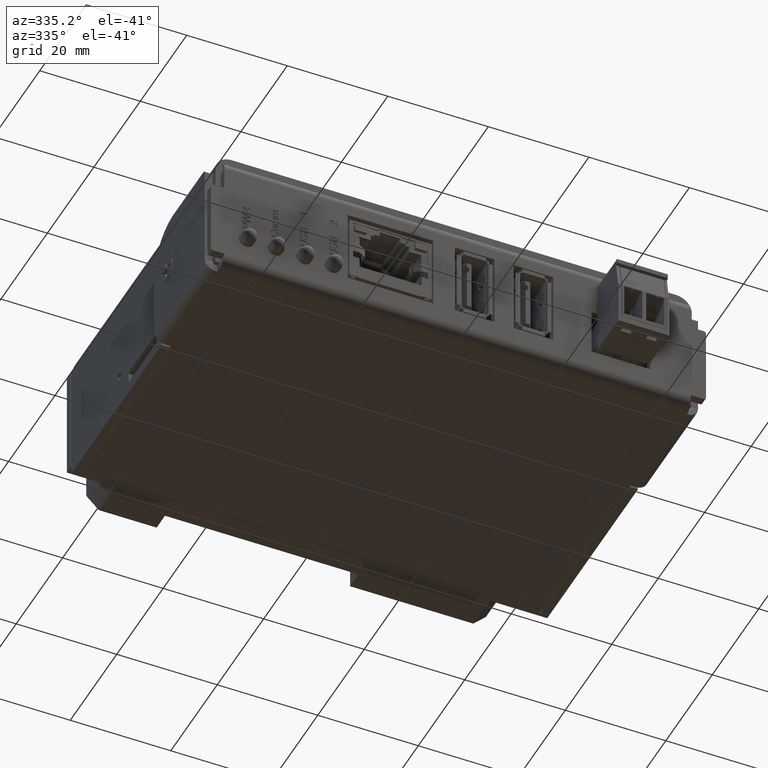
[diagram: clean part render]
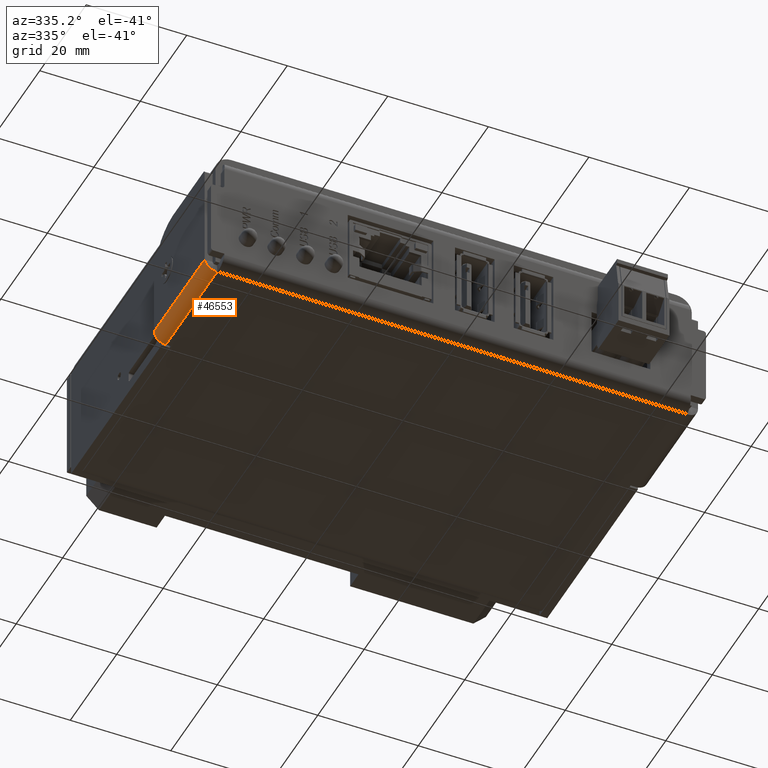
[diagram: same view with one face highlighted and labeled with its STEP entity id]
A machine part, auxiliary view. The second image highlights one B-rep face of the part: STEP entity #46553.
In plain terms, the highlighted cylindrical surface (edge-blend (fillet) strip) has radius 2.3368 mm, axis along (0, 1, 0).
Its self-contained STEP definition (entity closure, byte-faithful):
#2938=B_SPLINE_CURVE_WITH_KNOTS('',3,(#70556,#70557,#70558,#70559,#70560,
#70561,#70562),.UNSPECIFIED.,.F.,.F.,(4,3,4),(0.,0.673198425769242,1.5707963267949),
 .UNSPECIFIED.);
#4139=FACE_OUTER_BOUND('',#6736,.T.);
#6736=EDGE_LOOP('',(#34243,#34244,#34245,#34246));
#9682=LINE('',#70362,#14827);
#9724=LINE('',#70555,#14869);
#14827=VECTOR('',#52918,0.393700787401575);
#14869=VECTOR('',#53042,0.393700787401575);
#19330=CIRCLE('',#48898,0.0920000000000002);
#21071=VERTEX_POINT('',#70359);
#21072=VERTEX_POINT('',#70361);
#21078=VERTEX_POINT('',#70478);
#21080=VERTEX_POINT('',#70553);
#25908=EDGE_CURVE('',#21071,#21072,#9682,.T.);
#25958=EDGE_CURVE('',#21071,#21080,#19330,.T.);
#25959=EDGE_CURVE('',#21078,#21080,#9724,.T.);
#25960=EDGE_CURVE('',#21078,#21072,#2938,.T.);
#34243=ORIENTED_EDGE('',*,*,#25908,.F.);
#34244=ORIENTED_EDGE('',*,*,#25958,.T.);
#34245=ORIENTED_EDGE('',*,*,#25959,.F.);
#34246=ORIENTED_EDGE('',*,*,#25960,.T.);
#45693=CYLINDRICAL_SURFACE('',#48897,0.0920000000000002);
#46553=ADVANCED_FACE('',(#4139),#45693,.T.);
#48897=AXIS2_PLACEMENT_3D('',#70552,#53038,#53039);
#48898=AXIS2_PLACEMENT_3D('',#70554,#53040,#53041);
#52918=DIRECTION('',(0.,-1.,0.));
#53038=DIRECTION('center_axis',(0.,1.,0.));
#53039=DIRECTION('ref_axis',(0.,0.,-1.));
#53040=DIRECTION('center_axis',(0.,-1.,0.));
#53041=DIRECTION('ref_axis',(-1.,0.,1.66286399614346E-15));
#53042=DIRECTION('',(0.,1.,0.));
#70359=CARTESIAN_POINT('',(-1.932,-0.75,0.0920000000000002));
#70361=CARTESIAN_POINT('',(-1.932,-1.60615937956643,0.0920000000000002));
#70362=CARTESIAN_POINT('',(-1.932,-1.18252855895779,0.0920000000000002));
#70478=CARTESIAN_POINT('',(-1.84,-1.62,0.));
#70552=CARTESIAN_POINT('Origin',(-1.84,-1.185,0.092));
#70553=CARTESIAN_POINT('',(-1.84,-0.75,0.));
#70554=CARTESIAN_POINT('Origin',(-1.84,-0.75,0.092));
#70555=CARTESIAN_POINT('',(-1.84,-0.975,0.));
#70556=CARTESIAN_POINT('Ctrl Pts',(-1.84,-1.62,-2.18547839493141E-17));
#70557=CARTESIAN_POINT('Ctrl Pts',(-1.86064475172359,-1.61802276850949,
-2.33975463207361E-17));
#70558=CARTESIAN_POINT('Ctrl Pts',(-1.88130514586724,-1.61604553701898,
0.00721694319826764));
#70559=CARTESIAN_POINT('Ctrl Pts',(-1.89736269675486,-1.61406830552847,
0.0200900367024471));
#70560=CARTESIAN_POINT('Ctrl Pts',(-1.91877276460502,-1.61143199687446,
0.0372541613746864));
#70561=CARTESIAN_POINT('Ctrl Pts',(-1.932,-1.60879568822045,0.0644736643685467));
#70562=CARTESIAN_POINT('Ctrl Pts',(-1.932,-1.60615937956643,0.0920000000000001));